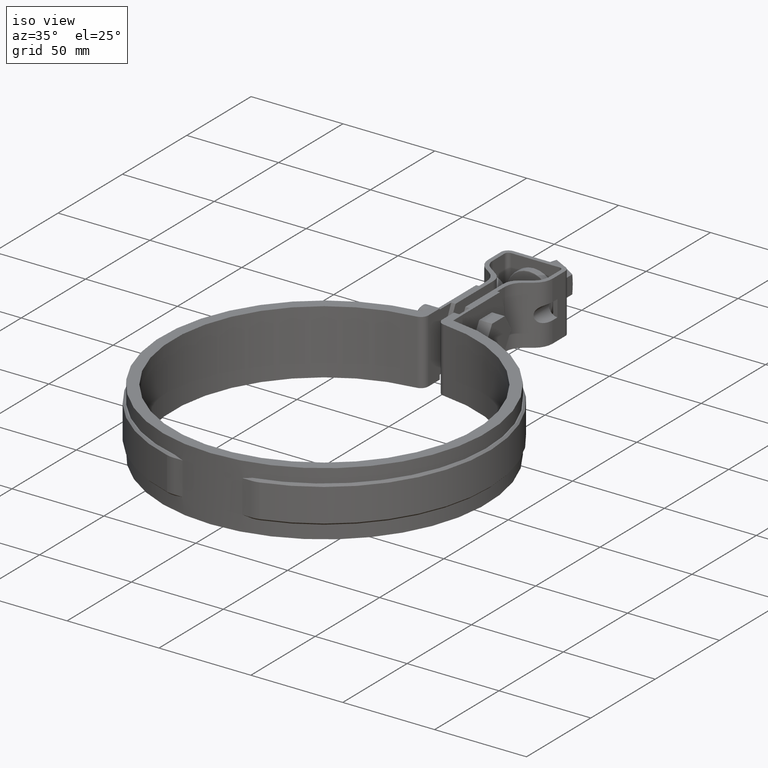
[diagram: clean part render]
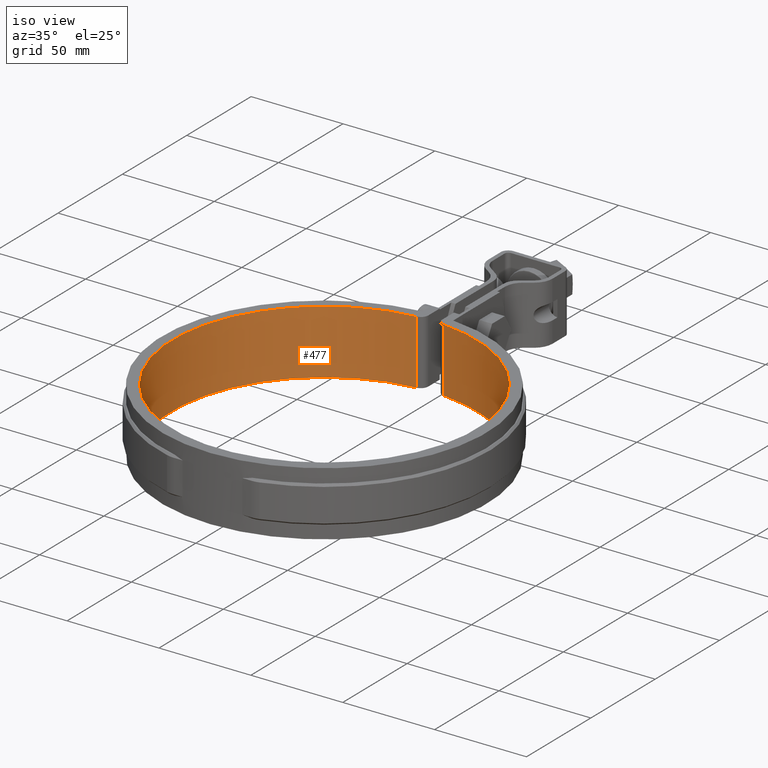
[diagram: same view with one face highlighted and labeled with its STEP entity id]
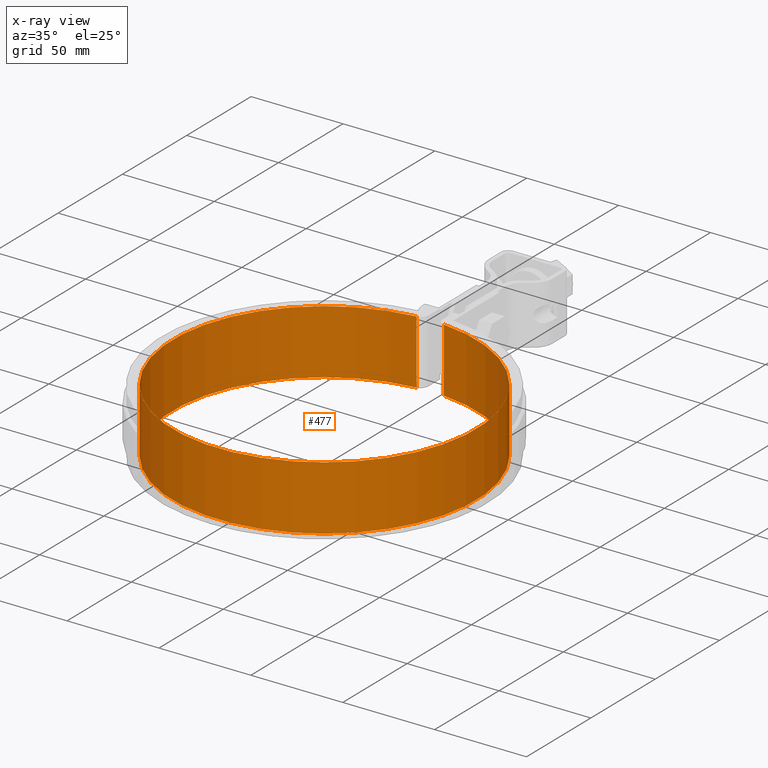
[diagram: x-ray of the same camera — body ghosted, the highlighted face saturated]
A machine part, iso view. The second image highlights one B-rep face of the part: STEP entity #477.
The next image is the same camera in x-ray: the body ghosted, the highlighted face saturated — about 0% of this face is hidden behind the body in this view.
In plain terms, the highlighted cylindrical surface (partial cylindrical patch) has radius 82.5 mm, axis along (0, 0, -1).
Its self-contained STEP definition (entity closure, byte-faithful):
#477 = ADVANCED_FACE( '', ( #852 ), #853, .F. );
#852 = FACE_OUTER_BOUND( '', #1987, .T. );
#853 = CYLINDRICAL_SURFACE( '', #1988, 82.5000000000000 );
#1987 = EDGE_LOOP( '', ( #4831, #4832, #4833, #4834 ) );
#1988 = AXIS2_PLACEMENT_3D( '', #4835, #4836, #4837 );
#4831 = ORIENTED_EDGE( '', *, *, #5409, .F. );
#4832 = ORIENTED_EDGE( '', *, *, #5416, .F. );
#4833 = ORIENTED_EDGE( '', *, *, #5412, .T. );
#4834 = ORIENTED_EDGE( '', *, *, #5415, .T. );
#4835 = CARTESIAN_POINT( '', ( 0.000000000000000, 0.000000000000000, -33.5000000000000 ) );
#4836 = DIRECTION( '', ( 0.000000000000000, 0.000000000000000, -1.00000000000000 ) );
#4837 = DIRECTION( '', ( 0.000000000000000, 1.00000000000000, 0.000000000000000 ) );
#5409 = EDGE_CURVE( '', #6184, #6186, #6187, .T. );
#5412 = EDGE_CURVE( '', #6191, #6189, #6192, .T. );
#5415 = EDGE_CURVE( '', #6189, #6186, #6195, .T. );
#5416 = EDGE_CURVE( '', #6191, #6184, #6196, .T. );
#6184 = VERTEX_POINT( '', #9440 );
#6186 = VERTEX_POINT( '', #9442 );
#6187 = CIRCLE( '', #9443, 82.5000000000000 );
#6189 = VERTEX_POINT( '', #9445 );
#6191 = VERTEX_POINT( '', #9447 );
#6192 = CIRCLE( '', #9448, 82.5000000000000 );
#6195 = LINE( '', #9452, #9453 );
#6196 = LINE( '', #9454, #9455 );
#9440 = CARTESIAN_POINT( '', ( 7.43930635838155, 82.1639015681835, 1.50000000000000 ) );
#9442 = CARTESIAN_POINT( '', ( -7.43930635838159, 82.1639015681835, 1.50000000000000 ) );
#9443 = AXIS2_PLACEMENT_3D( '', #10129, #10130, #10131 );
#9445 = CARTESIAN_POINT( '', ( -7.43930635838159, 82.1639015681835, -33.5000000000000 ) );
#9447 = CARTESIAN_POINT( '', ( 7.43930635838155, 82.1639015681835, -33.5000000000000 ) );
#9448 = AXIS2_PLACEMENT_3D( '', #10138, #10139, #10140 );
#9452 = CARTESIAN_POINT( '', ( -7.43930635838159, 82.1639015681835, -33.5000000000000 ) );
#9453 = VECTOR( '', #10145, 1000.00000000000 );
#9454 = CARTESIAN_POINT( '', ( 7.43930635838155, 82.1639015681835, -33.5000000000000 ) );
#9455 = VECTOR( '', #10146, 1000.00000000000 );
#10129 = CARTESIAN_POINT( '', ( 0.000000000000000, 0.000000000000000, 1.50000000000000 ) );
#10130 = DIRECTION( '', ( 0.000000000000000, 0.000000000000000, -1.00000000000000 ) );
#10131 = DIRECTION( '', ( 1.00000000000000, 0.000000000000000, 0.000000000000000 ) );
#10138 = CARTESIAN_POINT( '', ( 0.000000000000000, 0.000000000000000, -33.5000000000000 ) );
#10139 = DIRECTION( '', ( 0.000000000000000, 0.000000000000000, -1.00000000000000 ) );
#10140 = DIRECTION( '', ( 1.00000000000000, 0.000000000000000, 0.000000000000000 ) );
#10145 = DIRECTION( '', ( 0.000000000000000, 0.000000000000000, 1.00000000000000 ) );
#10146 = DIRECTION( '', ( 0.000000000000000, 0.000000000000000, 1.00000000000000 ) );